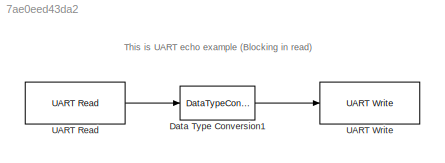
MODEL slx_7ae0eed43da2
KIND model
BLOCK [DataTypeConversion] Data Type Conversion1
  OutDataTypeStr = uint8
  RndMeth = Floor
  SaturateOnIntegerOverflow = off
BLOCK [Reference] UART Read  REF=stellaris_lib/UART/UART Read
  Ports = [0, 1]
  SourceBlock = stellaris_lib/UART/UART Read
  SourceType = UART Read
  nbFlag = off
BLOCK [Reference] UART Write  REF=stellaris_lib/UART/UART Write
  Ports = [1]
  SourceBlock = stellaris_lib/UART/UART Write
  SourceType = UART Write
  nbFlag = on
ANNOTATION (root): This is UART echo example (Blocking in read)
LINE Data Type Conversion1:1 -> UART Write:1
LINE UART Read:1 -> Data Type Conversion1:1
